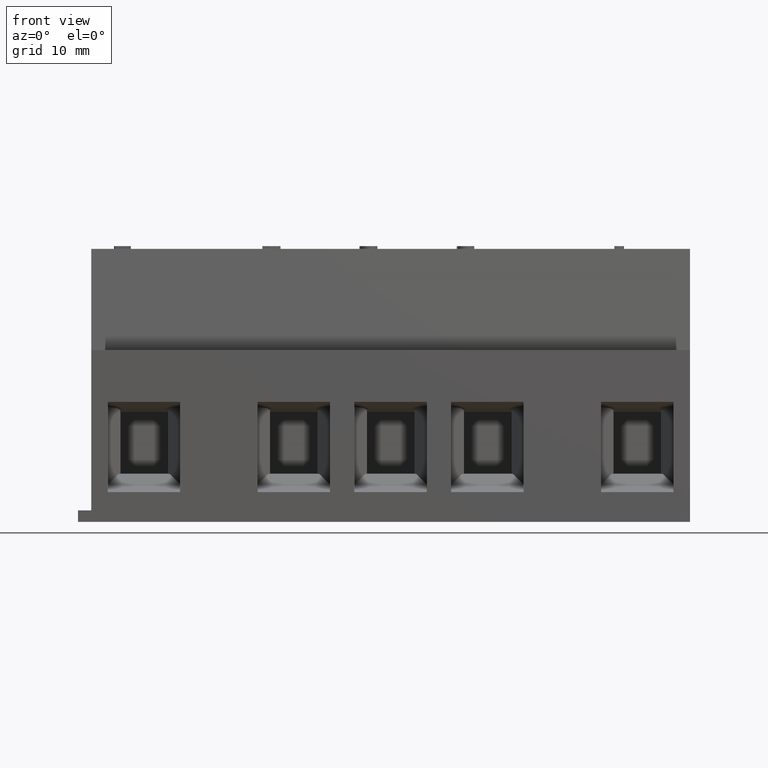
[diagram: clean part render]
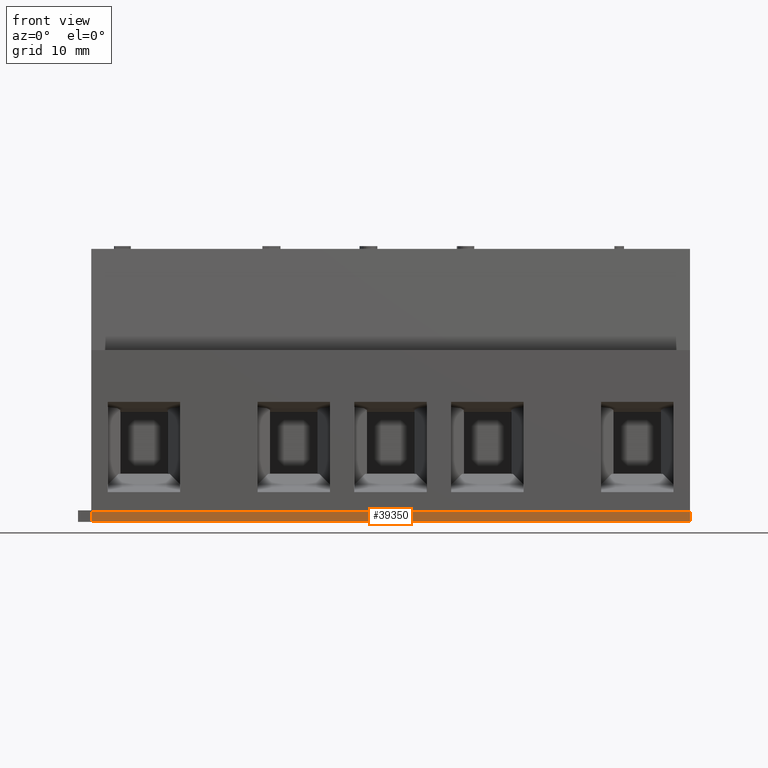
[diagram: same view with one face highlighted and labeled with its STEP entity id]
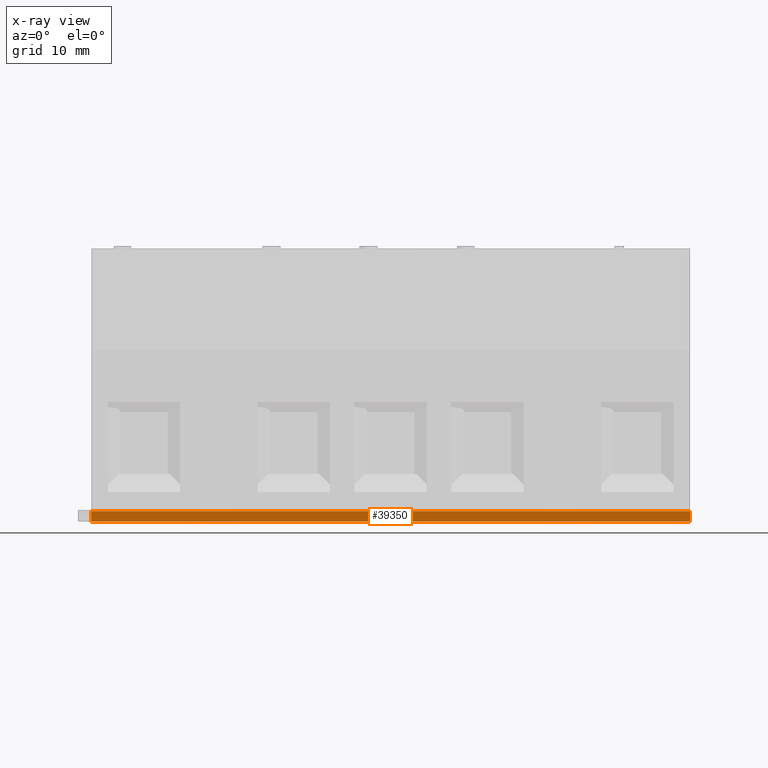
[diagram: x-ray of the same camera — body ghosted, the highlighted face saturated]
A machine part, front view. The second image highlights one B-rep face of the part: STEP entity #39350.
The next image is the same camera in x-ray: the body ghosted, the highlighted face saturated — about 0% of this face is hidden behind the body in this view.
In plain terms, the highlighted planar face has unit normal (0, 1, 0).
Its self-contained STEP definition (entity closure, byte-faithful):
#34480=CARTESIAN_POINT('',(39.7713182031141,-17.9158790304453,-39.));
#34490=VERTEX_POINT('',#34480);
#35220=CARTESIAN_POINT('',(39.7713182031141,-17.9158790304453,29.));
#35230=VERTEX_POINT('',#35220);
#35260=CARTESIAN_POINT('',(39.7713182031141,-17.9158790304453,-29.));
#35270=DIRECTION('',(0.,0.,1.));
#35280=VECTOR('',#35270,1.);
#35290=LINE('',#35260,#35280);
#35300=EDGE_CURVE('',#34490,#35230,#35290,.T.);
#39050=CARTESIAN_POINT('',(39.7713182031141,-17.9158790304453,
-7.105427357601E-15));
#39060=DIRECTION('',(0.,1.,-0.));
#39070=DIRECTION('',(-1.,0.,0.));
#39080=AXIS2_PLACEMENT_3D('',#39050,#39060,#39070);
#39090=PLANE('',#39080);
#39100=CARTESIAN_POINT('',(58.3213182031141,-17.9158790304453,29.));
#39110=DIRECTION('',(-1.,0.,0.));
#39120=VECTOR('',#39110,1.);
#39130=LINE('',#39100,#39120);
#39140=CARTESIAN_POINT('',(40.9713182031141,-17.9158790304453,29.));
#39150=VERTEX_POINT('',#39140);
#39160=EDGE_CURVE('',#39150,#35230,#39130,.T.);
#39170=ORIENTED_EDGE('',*,*,#39160,.T.);
#39180=CARTESIAN_POINT('',(40.9713182031141,-17.9158790304453,-29.));
#39190=DIRECTION('',(0.,0.,1.));
#39200=VECTOR('',#39190,1.);
#39210=LINE('',#39180,#39200);
#39220=CARTESIAN_POINT('',(40.9713182031141,-17.9158790304453,-39.));
#39230=VERTEX_POINT('',#39220);
#39240=EDGE_CURVE('',#39230,#39150,#39210,.T.);
#39250=ORIENTED_EDGE('',*,*,#39240,.T.);
#39260=CARTESIAN_POINT('',(40.7713182031141,-17.9158790304453,-39.));
#39270=DIRECTION('',(-1.,0.,0.));
#39280=VECTOR('',#39270,1.);
#39290=LINE('',#39260,#39280);
#39300=EDGE_CURVE('',#39230,#34490,#39290,.T.);
#39310=ORIENTED_EDGE('',*,*,#39300,.F.);
#39320=ORIENTED_EDGE('',*,*,#35300,.F.);
#39330=EDGE_LOOP('',(#39320,#39310,#39250,#39170));
#39340=FACE_OUTER_BOUND('',#39330,.T.);
#39350=ADVANCED_FACE('',(#39340),#39090,.F.);